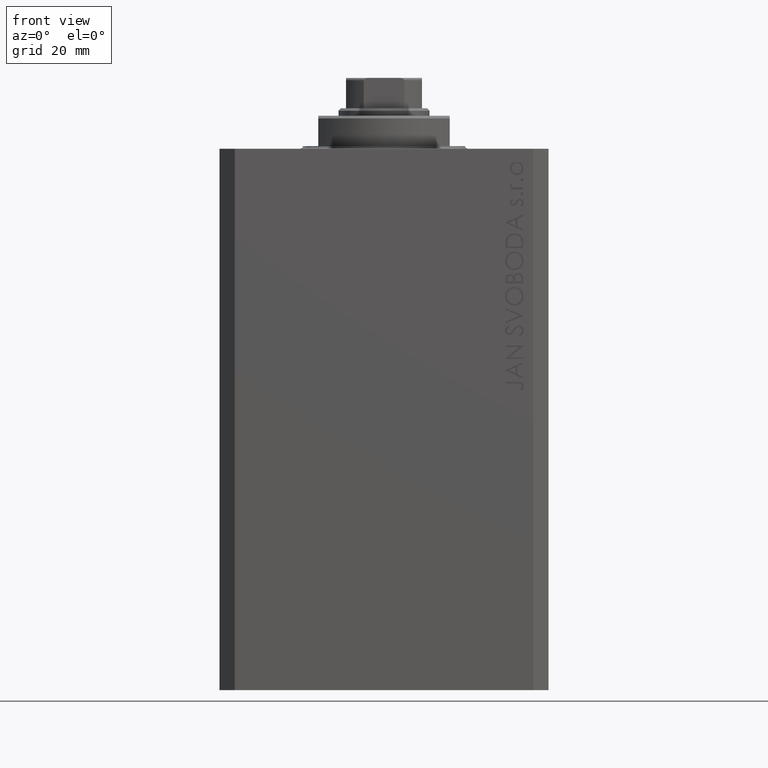
[diagram: clean part render]
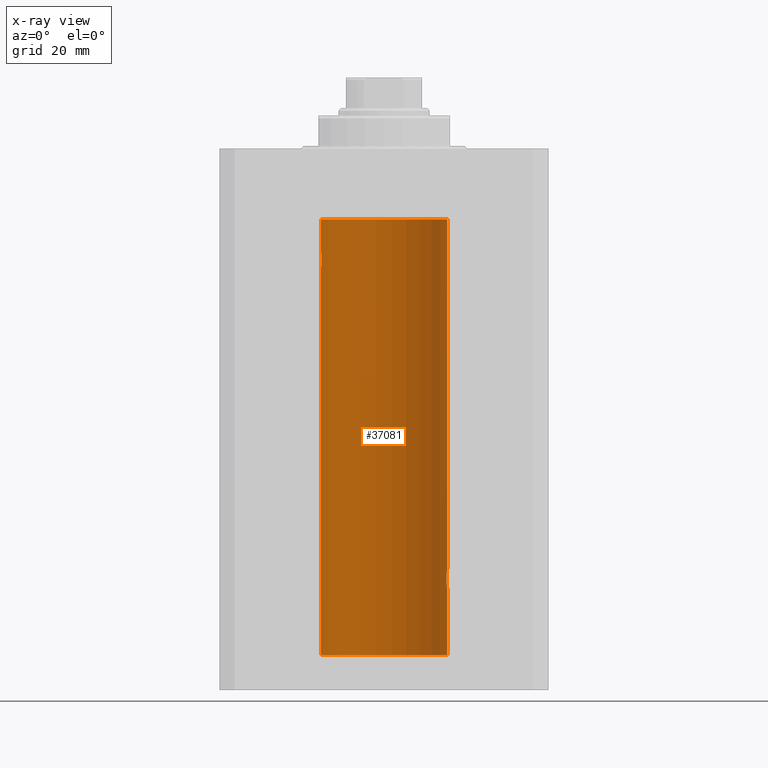
[diagram: x-ray — body ghosted, one internal face saturated and labeled with its STEP entity id]
A machine part, front view, then the same camera in x-ray: the body is ghosted and one INTERNAL B-rep face — a face not visible from any outside direction — is saturated and labeled: STEP entity #37081.
In plain terms, the highlighted cylindrical surface (partial cylindrical patch) has radius 12.5 mm, axis along (0, 0, 1).
Its self-contained STEP definition (entity closure, byte-faithful):
#61 = CARTESIAN_POINT ( 'NONE',  ( -12.50000000000000000, 1.530808426276628993E-15, -23.99999999999999645 ) ) ;
#143 = CARTESIAN_POINT ( 'NONE',  ( -12.50000000000000000, 1.530808498934191521E-15, -100.0999999999999943 ) ) ;
#508 = CARTESIAN_POINT ( 'NONE',  ( -12.33897869807161385, 1.999901172190678089, -21.73788193668374547 ) ) ;
#1045 = B_SPLINE_CURVE_WITH_KNOTS ( 'NONE', 3,
 ( #5753, #39991, #19940, #20150, #19494, #30532, #2367, #30311, #44034, #14270, #24411, #23970, #508, #10443, #31393, #10007, #27794, #30955, #28015, #24192, #6843, #38369, #41750, #3906, #37925, #41087, #17654, #38142, #10223, #61 ),
 .UNSPECIFIED., .F., .F.,
 ( 4, 2, 2, 2, 2, 2, 2, 2, 2, 2, 2, 2, 2, 2, 4 ),
 ( 1.814683826656258666E-20, 0.0003914362731607577369, 0.0007828725463215154739, 0.001174308819482273265, 0.001565745092643030948, 0.002348617638964546530, 0.003131490185286061895, 0.003522926458446825216, 0.003914362731607588103, 0.004305799004768351423, 0.004697235277929114744, 0.005088671551089878065, 0.005480107824250641385, 0.005871544097411404706, 0.006262980370572168026 ),
 .UNSPECIFIED. ) ;
#1722 = CARTESIAN_POINT ( 'NONE',  ( 12.49999999999999822, 0.1306079576516667173, -82.99999999999997158 ) ) ;
#1894 = CARTESIAN_POINT ( 'NONE',  ( 12.50000000000000000, 2.320363022323678888E-15, -87.00000000000000000 ) ) ;
#2169 = CARTESIAN_POINT ( 'NONE',  ( 12.34924836377099844, 1.935649219704934865, -84.48002062127160627 ) ) ;
#2367 = CARTESIAN_POINT ( 'NONE',  ( -12.46021263690096958, 1.002494658017156981, -20.26446744561863156 ) ) ;
#2396 = CARTESIAN_POINT ( 'NONE',  ( 0.000000000000000000, 0.000000000000000000, -13.99999999999999822 ) ) ;
#3575 = VERTEX_POINT ( 'NONE', #34165 ) ;
#3906 = CARTESIAN_POINT ( 'NONE',  ( -12.46009879577771606, 1.003863686549169465, -23.73470742397611843 ) ) ;
#4472 = ORIENTED_EDGE ( 'NONE', *, *, #37039, .F. ) ;
#4850 = CARTESIAN_POINT ( 'NONE',  ( 12.46019522898365217, 1.002712894177336223, -86.73540896027598990 ) ) ;
#5117 = CYLINDRICAL_SURFACE ( 'NONE', #19522, 12.50000000000000000 ) ;
#5336 = VECTOR ( 'NONE', #36306, 1000.000000000000000 ) ;
#5615 = CARTESIAN_POINT ( 'NONE',  ( -12.50000000000000000, 1.530808498934191521E-15, -100.0999999999999943 ) ) ;
#5667 = CARTESIAN_POINT ( 'NONE',  ( 12.50000000000000000, -7.266276684081261841E-23, -82.99999999999998579 ) ) ;
#5737 = CARTESIAN_POINT ( 'NONE',  ( 12.50000000000000178, 0.1324055009716466613, -87.00000000000002842 ) ) ;
#5753 = CARTESIAN_POINT ( 'NONE',  ( -12.50000000000000000, 1.867773856434666690E-17, -20.00000000000000000 ) ) ;
#5890 = CARTESIAN_POINT ( 'NONE',  ( 12.50000000000000000, 0.000000000000000000, -100.0999999999999943 ) ) ;
#6519 = CARTESIAN_POINT ( 'NONE',  ( 12.33896267925302759, 2.000000000000247802, -84.99999999999998579 ) ) ;
#6599 = EDGE_CURVE ( 'NONE', #37501, #30302, #28007, .T. ) ;
#6843 = CARTESIAN_POINT ( 'NONE',  ( -12.40913174964213184, 1.507394620545641439, -23.32102833500698225 ) ) ;
#8212 = CARTESIAN_POINT ( 'NONE',  ( 12.48390005916863110, 0.6457215011736527899, -86.89742771554266199 ) ) ;
#8480 = CARTESIAN_POINT ( 'NONE',  ( 12.46910683544638232, 0.8866026273585037032, -83.20247863689694157 ) ) ;
#8863 = AXIS2_PLACEMENT_3D ( 'NONE', #31515, #14619, #34895 ) ;
#8880 = CARTESIAN_POINT ( 'NONE',  ( 12.39869754437268590, 1.598954131913722820, -86.22932152813008599 ) ) ;
#9373 = FACE_OUTER_BOUND ( 'NONE', #39689, .T. ) ;
#9376 = CARTESIAN_POINT ( 'NONE',  ( 12.35520276972935427, 1.897773362058238877, -84.35528278634336630 ) ) ;
#10007 = CARTESIAN_POINT ( 'NONE',  ( -12.34922241902463114, 1.935814255713574239, -22.51937350851555308 ) ) ;
#10223 = CARTESIAN_POINT ( 'NONE',  ( -12.50000000000000533, 0.1306394121199390135, -24.00000000000000711 ) ) ;
#10443 = CARTESIAN_POINT ( 'NONE',  ( -12.33895470450623044, 2.000049200055401766, -22.12992629360264729 ) ) ;
#12322 = CARTESIAN_POINT ( 'NONE',  ( 12.48395395845270528, 0.6446573166014707423, -83.10222124213517247 ) ) ;
#12974 = VERTEX_POINT ( 'NONE', #40270 ) ;
#14247 = DIRECTION ( 'NONE',  ( 1.000000000000000000, 0.000000000000000000, 0.000000000000000000 ) ) ;
#14270 = CARTESIAN_POINT ( 'NONE',  ( -12.39873273758732175, 1.598680238462371062, -20.77033506126851137 ) ) ;
#14619 = DIRECTION ( 'NONE',  ( 0.000000000000000000, 0.000000000000000000, 1.000000000000000000 ) ) ;
#14630 = VERTEX_POINT ( 'NONE', #5667 ) ;
#15486 = CARTESIAN_POINT ( 'NONE',  ( 12.49788668346399945, 0.2632864803365707607, -83.01308975838333026 ) ) ;
#15694 = VERTEX_POINT ( 'NONE', #43774 ) ;
#15936 = CARTESIAN_POINT ( 'NONE',  ( 12.37925647381943506, 1.734744884174218571, -83.99620732598648942 ) ) ;
#16159 = ORIENTED_EDGE ( 'NONE', *, *, #33667, .T. ) ;
#17562 = ORIENTED_EDGE ( 'NONE', *, *, #18561, .F. ) ;
#17654 = CARTESIAN_POINT ( 'NONE',  ( -12.48983485452574982, 0.5201193324741355539, -23.93561774521849372 ) ) ;
#17672 = CARTESIAN_POINT ( 'NONE',  ( 12.50000000000000000, 0.000000000000000000, -13.99999999999999822 ) ) ;
#17734 = LINE ( 'NONE', #143, #26732 ) ;
#17857 = VERTEX_POINT ( 'NONE', #17672 ) ;
#18561 = EDGE_CURVE ( 'NONE', #3575, #36894, #28301, .T. ) ;
#18569 = CARTESIAN_POINT ( 'NONE',  ( 12.43016561391612917, 1.322713721413880661, -86.50578877836700542 ) ) ;
#18843 = DIRECTION ( 'NONE',  ( 1.000000000000000000, 0.000000000000000000, 0.000000000000000000 ) ) ;
#19169 = AXIS2_PLACEMENT_3D ( 'NONE', #2396, #27767, #14247 ) ;
#19494 = CARTESIAN_POINT ( 'NONE',  ( -12.48390768591463207, 0.6455696738844916016, -20.10252270298193977 ) ) ;
#19522 = AXIS2_PLACEMENT_3D ( 'NONE', #22231, #35964, #18843 ) ;
#19940 = CARTESIAN_POINT ( 'NONE',  ( -12.49789934882883458, 0.2624928479599910047, -20.01301208516349917 ) ) ;
#20150 = CARTESIAN_POINT ( 'NONE',  ( -12.48990118705761532, 0.5184196815546056047, -20.06395648222637007 ) ) ;
#21850 = ORIENTED_EDGE ( 'NONE', *, *, #35952, .F. ) ;
#21875 = VERTEX_POINT ( 'NONE', #33689 ) ;
#21959 = CARTESIAN_POINT ( 'NONE',  ( 12.44079900692650931, 1.220007525301739282, -86.59017579083662497 ) ) ;
#21969 = EDGE_CURVE ( 'NONE', #15694, #21875, #1045, .T. ) ;
#22231 = CARTESIAN_POINT ( 'NONE',  ( 0.000000000000000000, 0.000000000000000000, -100.0999999999999943 ) ) ;
#22458 = CARTESIAN_POINT ( 'NONE',  ( -12.50000000000000000, 1.530808498934191521E-15, -100.0999999999999943 ) ) ;
#22462 = CARTESIAN_POINT ( 'NONE',  ( 12.50000000000000000, -7.266276684081261841E-23, -82.99999999999998579 ) ) ;
#22685 = CARTESIAN_POINT ( 'NONE',  ( 12.37021546997940291, 1.797317011867403114, -84.11295119741077997 ) ) ;
#23970 = CARTESIAN_POINT ( 'NONE',  ( -12.34781876294798053, 1.947190906025043633, -21.47436412829509678 ) ) ;
#24192 = CARTESIAN_POINT ( 'NONE',  ( -12.39864157855465088, 1.590288205413973532, -23.21980790594580313 ) ) ;
#24411 = CARTESIAN_POINT ( 'NONE',  ( -12.37764291807175354, 1.747608771958140794, -20.99316879552500481 ) ) ;
#25576 = CARTESIAN_POINT ( 'NONE',  ( 12.48989642018887736, 0.5185418732824252919, -86.93601292187604201 ) ) ;
#25791 = CARTESIAN_POINT ( 'NONE',  ( 12.34779119491631683, 1.947363444907009633, -85.52502775168252924 ) ) ;
#25842 = CARTESIAN_POINT ( 'NONE',  ( 12.43037348241797524, 1.320834183883837554, -83.49243837704291593 ) ) ;
#26019 = CARTESIAN_POINT ( 'NONE',  ( 12.49789833780794446, 0.2625555164371021766, -86.98698170822147802 ) ) ;
#26071 = CARTESIAN_POINT ( 'NONE',  ( 12.48983962833819028, 0.5199974825204898288, -83.06435160808017315 ) ) ;
#26315 = ORIENTED_EDGE ( 'NONE', *, *, #6599, .T. ) ;
#26517 = CARTESIAN_POINT ( 'NONE',  ( 12.34110728646152388, 1.986893050944454453, -84.73661347764983987 ) ) ;
#26732 = VECTOR ( 'NONE', #41606, 1000.000000000000000 ) ;
#27009 = EDGE_CURVE ( 'NONE', #17857, #12974, #32123, .T. ) ;
#27723 = EDGE_CURVE ( 'NONE', #3575, #37501, #41616, .T. ) ;
#27767 = DIRECTION ( 'NONE',  ( 0.000000000000000000, 0.000000000000000000, 1.000000000000000000 ) ) ;
#27773 = VECTOR ( 'NONE', #28108, 1000.000000000000000 ) ;
#27794 = CARTESIAN_POINT ( 'NONE',  ( -12.35517291625592051, 1.897967064543089721, -22.64415233770293412 ) ) ;
#28007 = B_SPLINE_CURVE_WITH_KNOTS ( 'NONE', 3,
 ( #1894, #5737, #26019, #25576, #8212, #39745, #4850, #21959, #18569, #8880, #39974, #25791, #32325, #32544 ),
 .UNSPECIFIED., .F., .F.,
 ( 4, 2, 2, 2, 2, 2, 4 ),
 ( 2.254408494944823136E-18, 0.0003915305205218102386, 0.0007830610410436180920, 0.001174591561565426108, 0.001566122082087234016, 0.002349183123130850048, 0.003132244164174466730 ),
 .UNSPECIFIED. ) ;
#28015 = CARTESIAN_POINT ( 'NONE',  ( -12.37922086519035325, 1.734998657226764829, -23.00335814299181436 ) ) ;
#28108 = DIRECTION ( 'NONE',  ( -0.000000000000000000, -0.000000000000000000, 1.000000000000000000 ) ) ;
#28301 = CIRCLE ( 'NONE', #8863, 12.50000000000000000 ) ;
#28420 = ORIENTED_EDGE ( 'NONE', *, *, #27723, .T. ) ;
#29683 = CARTESIAN_POINT ( 'NONE',  ( 12.44079117518645639, 1.220047488436368122, -83.40989676335082947 ) ) ;
#30302 = VERTEX_POINT ( 'NONE', #6519 ) ;
#30311 = CARTESIAN_POINT ( 'NONE',  ( -12.44082361696003503, 1.219754986802281449, -20.40963319990594016 ) ) ;
#30532 = CARTESIAN_POINT ( 'NONE',  ( -12.46903010196599304, 0.8876934327478135378, -20.20300788371381984 ) ) ;
#30955 = CARTESIAN_POINT ( 'NONE',  ( -12.37018026341338839, 1.797558627508998086, -22.88656313533016373 ) ) ;
#31264 = CARTESIAN_POINT ( 'NONE',  ( 12.50000000000000000, 0.000000000000000000, -100.0999999999999943 ) ) ;
#31393 = CARTESIAN_POINT ( 'NONE',  ( -12.34109209020652465, 1.986986967296539897, -22.26269462454597914 ) ) ;
#31515 = CARTESIAN_POINT ( 'NONE',  ( 0.000000000000000000, 0.000000000000000000, -100.0999999999999943 ) ) ;
#32123 = CIRCLE ( 'NONE', #19169, 12.50000000000000000 ) ;
#32325 = CARTESIAN_POINT ( 'NONE',  ( 12.33896267925302759, 2.000000000000248246, -85.26143174220784715 ) ) ;
#32544 = CARTESIAN_POINT ( 'NONE',  ( 12.33896267925302759, 2.000000000000247802, -84.99999999999998579 ) ) ;
#33050 = CARTESIAN_POINT ( 'NONE',  ( 12.40916530024876430, 1.507117913375715990, -83.67865955049002480 ) ) ;
#33273 = LINE ( 'NONE', #22458, #38923 ) ;
#33500 = DIRECTION ( 'NONE',  ( -0.000000000000000000, -0.000000000000000000, 1.000000000000000000 ) ) ;
#33667 = EDGE_CURVE ( 'NONE', #30302, #14630, #43670, .T. ) ;
#33689 = CARTESIAN_POINT ( 'NONE',  ( -12.50000000000000000, 1.530808426276628993E-15, -23.99999999999999645 ) ) ;
#34054 = ORIENTED_EDGE ( 'NONE', *, *, #44380, .T. ) ;
#34165 = CARTESIAN_POINT ( 'NONE',  ( 12.50000000000000000, 0.000000000000000000, -100.0999999999999943 ) ) ;
#34895 = DIRECTION ( 'NONE',  ( 1.000000000000000000, 0.000000000000000000, 0.000000000000000000 ) ) ;
#35952 = EDGE_CURVE ( 'NONE', #36894, #21875, #17734, .T. ) ;
#35964 = DIRECTION ( 'NONE',  ( -0.000000000000000000, -0.000000000000000000, 1.000000000000000000 ) ) ;
#36195 = CARTESIAN_POINT ( 'NONE',  ( 12.39867611624532806, 1.590019252152828910, -83.77984495929609920 ) ) ;
#36306 = DIRECTION ( 'NONE',  ( -0.000000000000000000, -0.000000000000000000, 1.000000000000000000 ) ) ;
#36421 = CARTESIAN_POINT ( 'NONE',  ( 12.33896267925302759, 2.000000000000247802, -84.99999999999998579 ) ) ;
#36894 = VERTEX_POINT ( 'NONE', #5615 ) ;
#36968 = ORIENTED_EDGE ( 'NONE', *, *, #21969, .T. ) ;
#37039 = EDGE_CURVE ( 'NONE', #15694, #12974, #33273, .T. ) ;
#37081 = ADVANCED_FACE ( 'NONE', ( #9373 ), #5117, .F. ) ;
#37501 = VERTEX_POINT ( 'NONE', #41229 ) ;
#37925 = CARTESIAN_POINT ( 'NONE',  ( -12.46909283808506430, 0.8868029758979402155, -23.79742491916155345 ) ) ;
#38142 = CARTESIAN_POINT ( 'NONE',  ( -12.49788564268284041, 0.2633501011236127343, -23.98690384766255335 ) ) ;
#38369 = CARTESIAN_POINT ( 'NONE',  ( -12.43034574091277911, 1.321095788880539024, -23.50733550364322255 ) ) ;
#38923 = VECTOR ( 'NONE', #33500, 1000.000000000000000 ) ;
#39354 = CARTESIAN_POINT ( 'NONE',  ( 12.33896267925302581, 2.000000000000247358, -84.86934705949914814 ) ) ;
#39572 = CARTESIAN_POINT ( 'NONE',  ( 12.46011632531798874, 1.003644408234883434, -83.26516799687671266 ) ) ;
#39689 = EDGE_LOOP ( 'NONE', ( #21850, #17562, #28420, #26315, #16159, #34054, #39771, #4472, #36968 ) ) ;
#39745 = CARTESIAN_POINT ( 'NONE',  ( 12.46901623405144122, 0.8878913781257877780, -86.79689651717548315 ) ) ;
#39771 = ORIENTED_EDGE ( 'NONE', *, *, #27009, .T. ) ;
#39974 = CARTESIAN_POINT ( 'NONE',  ( 12.37760587642916477, 1.747868572747719229, -86.00639653169000098 ) ) ;
#39991 = CARTESIAN_POINT ( 'NONE',  ( -12.50000000000000000, 0.1323736289504353625, -20.00000000000000000 ) ) ;
#40270 = CARTESIAN_POINT ( 'NONE',  ( -12.50000000000000000, 1.530808498934191521E-15, -13.99999999999999822 ) ) ;
#41087 = CARTESIAN_POINT ( 'NONE',  ( -12.48394649977302073, 0.6448065707253024526, -23.89773031393659153 ) ) ;
#41229 = CARTESIAN_POINT ( 'NONE',  ( 12.50000000000000000, 2.320363022323678888E-15, -87.00000000000000000 ) ) ;
#41606 = DIRECTION ( 'NONE',  ( -0.000000000000000000, -0.000000000000000000, 1.000000000000000000 ) ) ;
#41616 = LINE ( 'NONE', #31264, #27773 ) ;
#41750 = CARTESIAN_POINT ( 'NONE',  ( -12.44076681548080288, 1.220297236145718944, -23.58991408680628155 ) ) ;
#42837 = LINE ( 'NONE', #5890, #5336 ) ;
#43670 = B_SPLINE_CURVE_WITH_KNOTS ( 'NONE', 3,
 ( #36421, #39354, #26517, #2169, #9376, #22685, #15936, #36195, #33050, #25842, #29683, #39572, #8480, #12322, #26071, #15486, #1722, #22462 ),
 .UNSPECIFIED., .F., .F.,
 ( 4, 2, 2, 2, 2, 2, 2, 2, 4 ),
 ( 0.003132244164174466730, 0.003523586189974241625, 0.003914928215774016521, 0.004306270241573791416, 0.004697612267373566311, 0.005088954293173341206, 0.005480296318973116101, 0.005871638344772890997, 0.006262980370572665892 ),
 .UNSPECIFIED. ) ;
#43774 = CARTESIAN_POINT ( 'NONE',  ( -12.50000000000000000, 1.867773856434666690E-17, -20.00000000000000000 ) ) ;
#44034 = CARTESIAN_POINT ( 'NONE',  ( -12.43019346654084956, 1.322451657002078340, -20.49398366327208620 ) ) ;
#44380 = EDGE_CURVE ( 'NONE', #14630, #17857, #42837, .T. ) ;